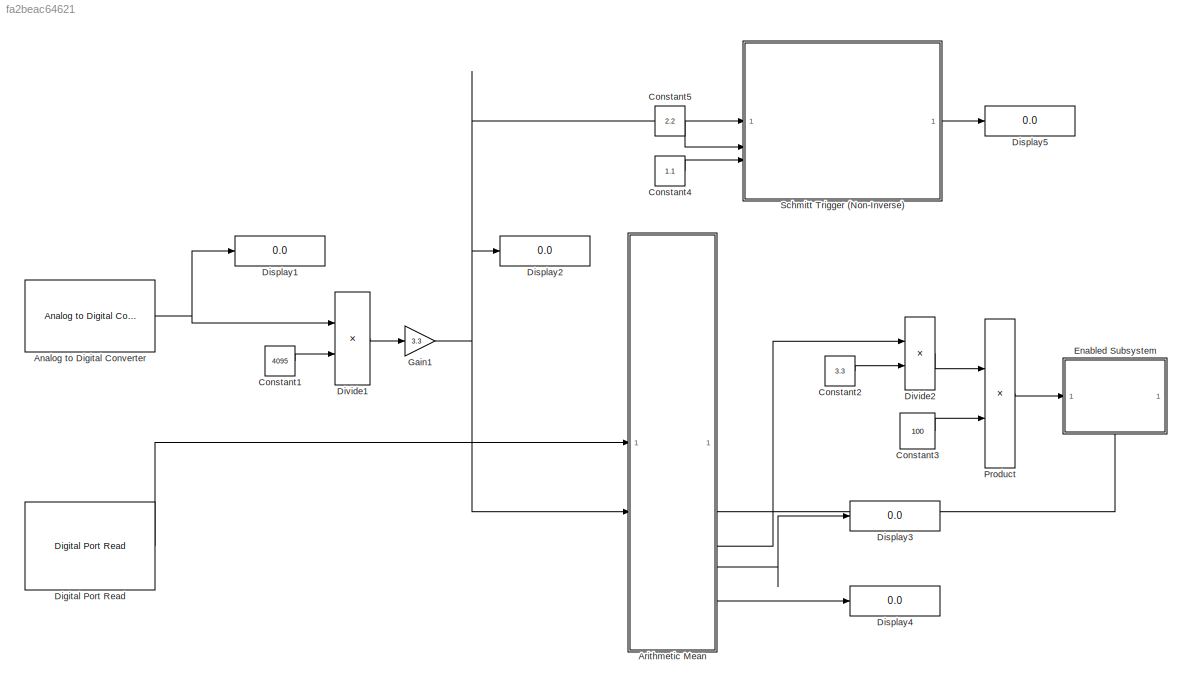
MODEL slx_fa2beac64621
KIND model
CONFIG AbsTol = auto
CONFIG EnableMultiTasking = off
CONFIG FixedStep = auto
CONFIG MaxStep = auto
CONFIG MinStep = auto
CONFIG RelTol = 1e-3
CONFIG SampleTimeConstraint = Unconstrained
CONFIG SolverName = VariableStepAuto
CONFIG StartTime = 0.0
CONFIG StopTime = 10.0
BLOCK [Reference] Analog to Digital Converter  REF=stm32f4xxblockslib/Analog to Digital Converter
  Commented = on
  LibrarySourceBlock = stm32g4xxblockslib/Analog to Digital Converter
  SourceBlock = stm32f4xxblockslib/Analog to Digital Converter
  SourceType = stm32cube.blocks.AnalogInput
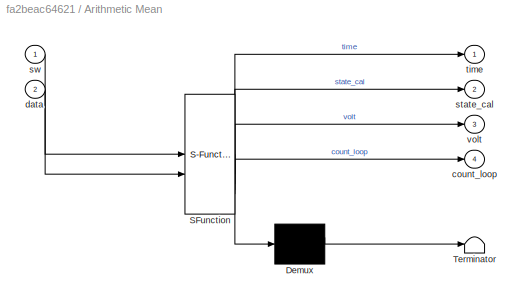
BLOCK [SubSystem] Arithmetic Mean
  Commented = on
  ErrorFcn = Stateflow.Translate.translate
  PermitHierarchicalResolution = ExplicitOnly
  PortSchema = {"entries":[{"content":{"sides":[{"content":{"connectorIds":["In2","In1"]},"type":"ConnectorPlacement.EquallySpacedRectSide","uuid":"35d75dd1-7445-4d4a-b8fe-26ed95a9a6b8"},{"content":{"connectorIds":["Out2","Out3","Out4","Out1"],"side":"RIGHT"},"type":"ConnectorPlacement.EquallySpacedRectSide","uuid":"b4f8c003-30bf-4716-9840-06738554497d"},{"content":{"side":"TOP"},"type":"ConnectorPlacement.Equal...<+249ch>
  SFBlockType = Chart
  TreatAsAtomicUnit = on
BLOCK [Demux] Arithmetic Mean/ Demux 
  Outputs = 1
BLOCK [S-Function] Arithmetic Mean/ SFunction 
  EnableBusSupport = on
  FunctionName = sf_sfun
  PortCounts = [2 5]
  SFcnIsStateOwnerBlock = off
  SFunctionDeploymentMode = off
  Tag = Stateflow S-Function 3
BLOCK [Terminator] Arithmetic Mean/ Terminator 
BLOCK [Outport] Arithmetic Mean/count_loop
  Port = 4
BLOCK [Inport] Arithmetic Mean/data
  Port = 2
BLOCK [Outport] Arithmetic Mean/state_cal
  Port = 2
BLOCK [Inport] Arithmetic Mean/sw
BLOCK [Outport] Arithmetic Mean/time
BLOCK [Outport] Arithmetic Mean/volt
  Port = 3
BLOCK [Constant] Constant1
  Commented = on
  Value = 4095
BLOCK [Constant] Constant2
  Commented = on
  Value = 3.3
BLOCK [Constant] Constant3
  Commented = on
  Value = 100
BLOCK [Constant] Constant4
  Commented = on
  Value = 1.1
BLOCK [Constant] Constant5
  Commented = on
  Value = 2.2
BLOCK [Reference] Digital Port Read  REF=stm32f4xxblockslib/Digital Port Read
  Commented = on
  LibrarySourceBlock = stm32g4xxblockslib/Digital Port Read
  SourceBlock = stm32f4xxblockslib/Digital Port Read
  SourceType = stm32cube.blocks.DigitalPortRead
BLOCK [Display] Display1
  Commented = on
  Decimation = 1
BLOCK [Display] Display2
  Commented = on
  Decimation = 1
BLOCK [Display] Display3
  Commented = on
  Decimation = 1
BLOCK [Display] Display4
  Commented = on
  Decimation = 1
BLOCK [Display] Display5
  Commented = on
  Decimation = 1
BLOCK [Product] Divide1
  Commented = on
  Inputs = */
BLOCK [Product] Divide2
  Commented = on
  Inputs = */
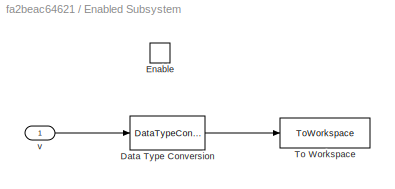
BLOCK [SubSystem] Enabled Subsystem
  Commented = on
  TreatAsAtomicUnit = on
BLOCK [DataTypeConversion] Enabled Subsystem/Data Type Conversion
  OutDataTypeStr = double
  RndMeth = Floor
  SaturateOnIntegerOverflow = off
BLOCK [EnablePort] Enabled Subsystem/Enable
BLOCK [ToWorkspace] Enabled Subsystem/To Workspace
  FixptAsFi = on
  MaxDataPoints = inf
  SampleTime = -1
  Save2DSignal = 2-D array (concatenate along first dimension)
  VariableName = simout
BLOCK [Inport] Enabled Subsystem/v
BLOCK [Gain] Gain1
  Commented = on
  Gain = 3.3
BLOCK [Product] Product
  Commented = on
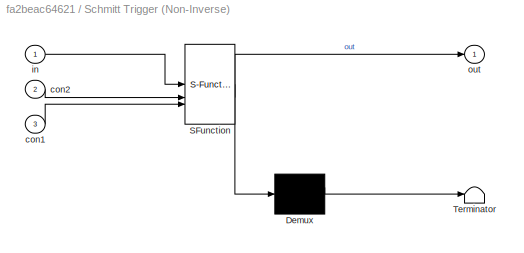
BLOCK [SubSystem] Schmitt Trigger (Non-Inverse)
  Commented = on
  ErrorFcn = Stateflow.Translate.translate
  PermitHierarchicalResolution = ExplicitOnly
  SFBlockType = Chart
  TreatAsAtomicUnit = on
BLOCK [Demux] Schmitt Trigger (Non-Inverse)/ Demux 
  Outputs = 1
BLOCK [S-Function] Schmitt Trigger (Non-Inverse)/ SFunction 
  EnableBusSupport = on
  FunctionName = sf_sfun
  PortCounts = [3 2]
  SFcnIsStateOwnerBlock = off
  SFunctionDeploymentMode = off
  Tag = Stateflow S-Function 4
BLOCK [Terminator] Schmitt Trigger (Non-Inverse)/ Terminator 
BLOCK [Inport] Schmitt Trigger (Non-Inverse)/con1
  Port = 3
BLOCK [Inport] Schmitt Trigger (Non-Inverse)/con2
  Port = 2
BLOCK [Inport] Schmitt Trigger (Non-Inverse)/in
BLOCK [Outport] Schmitt Trigger (Non-Inverse)/out
NET Analog to Digital Converter:1 -> Display1:1, Divide1:1
LINE Arithmetic Mean:1 -> Display4:1
LINE Arithmetic Mean:2 -> Enabled Subsystem:enable
LINE Arithmetic Mean:3 -> Divide2:1
LINE Arithmetic Mean:4 -> Display3:1
LINE Constant1:1 -> Divide1:2
LINE Constant2:1 -> Divide2:2
LINE Constant3:1 -> Product:2
LINE Constant4:1 -> Schmitt Trigger (Non-Inverse):3
LINE Constant5:1 -> Schmitt Trigger (Non-Inverse):2
LINE Digital Port Read:1 -> Arithmetic Mean:1
LINE Divide1:1 -> Gain1:1
LINE Divide2:1 -> Product:1
LINE Enabled Subsystem/Data Type Conversion:1 -> Enabled Subsystem/To Workspace:1
LINE Enabled Subsystem/v:1 -> Enabled Subsystem/Data Type Conversion:1
NET Gain1:1 -> Arithmetic Mean:2, Display2:1, Schmitt Trigger (Non-Inverse):1
LINE Product:1 -> Enabled Subsystem:1
LINE Schmitt Trigger (Non-Inverse):1 -> Display5:1
note: NET lines group one-source signal fan-out (src -> all destinations, sorted); 1:1 wires keep LINE
CHART Arithmetic Mean states=3 transitions=4
  STATE_LABEL 'Initial\nvolt ;\ntime = 0;\nstate_cal = 0;\ncount_loop=0;\n'
  STATE_LABEL 'StopCount\nentry:\nstate_cal = 1\n'
  STATE_LABEL 'CountData\nentry:\nvolt = data - data;\nduring:\nvolt = volt + data\ncount_loop=count_loop+1\ntime=time+0.002\nexit:\nvolt = volt/500;\n'
CHART Schmitt Trigger
(Non-Inverse) states=3 transitions=5
  STATE_LABEL 'Initial_\nout = 0;\n'
  STATE_LABEL 'low1\nentry:\nout=0'
  STATE_LABEL 'high\nentry:\nout=1'
CHART  states=0 transitions=0
CHART  states=0 transitions=0
